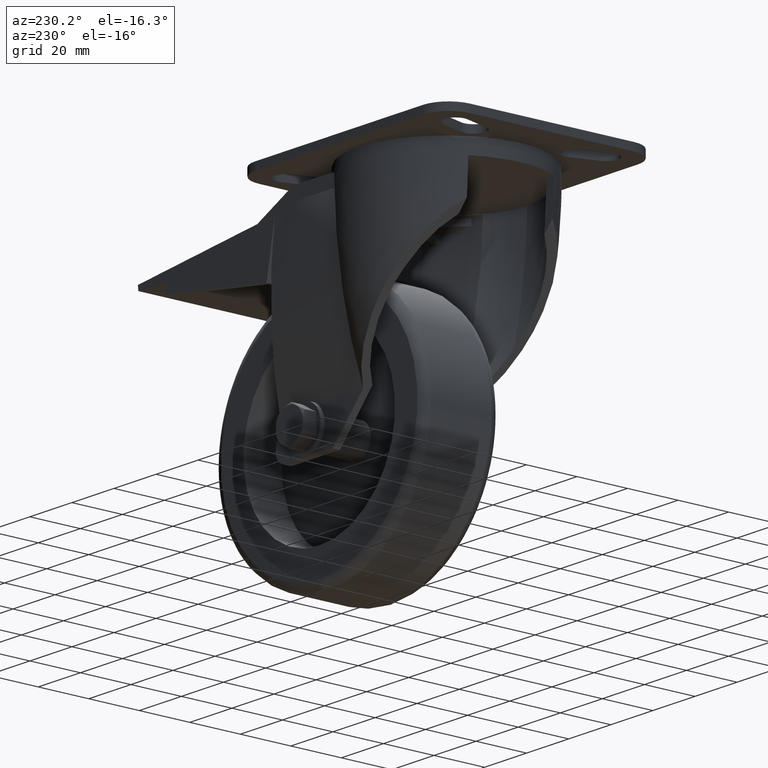
[diagram: clean part render]
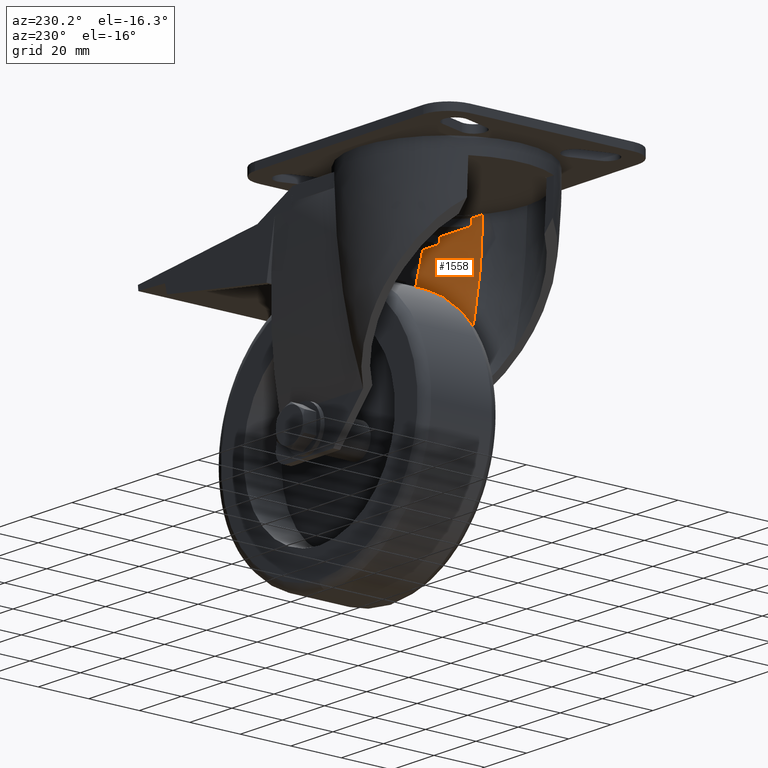
[diagram: same view with one face highlighted and labeled with its STEP entity id]
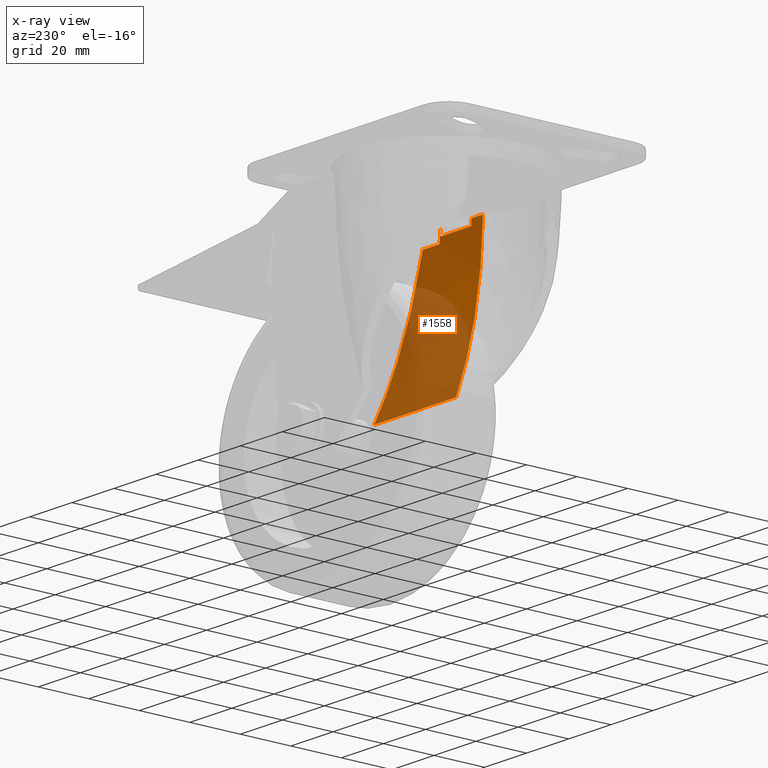
[diagram: x-ray of the same camera — body ghosted, the highlighted face saturated]
A machine part, auxiliary view. The second image highlights one B-rep face of the part: STEP entity #1558.
The next image is the same camera in x-ray: the body ghosted, the highlighted face saturated — about 63% of this face is hidden behind the body in this view.
In plain terms, the highlighted face is a freeform B-spline surface patch.
Its self-contained STEP definition (entity closure, byte-faithful):
#1007=CARTESIAN_POINT('',(-34.001522241716145,-27.712269780300414,-9.075096515549770));
#1008=VERTEX_POINT('',#1007);
#1016=CARTESIAN_POINT('',(-34.001522241716089,-17.070057319302080,-69.016779864440082));
#1017=VERTEX_POINT('',#1016);
#1018=CARTESIAN_POINT('',(-34.001522241716089,-27.712269780300414,-9.075096515550055));
#1019=CARTESIAN_POINT('',(-34.001522241716145,-27.675552086705988,-11.487526515328224));
#1020=CARTESIAN_POINT('',(-34.001522246608317,-27.465595016467784,-17.841934993525168));
#1021=CARTESIAN_POINT('',(-34.001522215523039,-26.707649965393397,-27.276906370432524));
#1022=CARTESIAN_POINT('',(-34.001522315381806,-25.353580577046969,-37.343742798966161));
#1023=CARTESIAN_POINT('',(-34.001522022057031,-23.937088444888573,-45.013148197683222));
#1024=CARTESIAN_POINT('',(-34.001522786426165,-22.202043046810800,-52.698920388377474));
#1025=CARTESIAN_POINT('',(-34.001518682892993,-20.534332425598635,-58.872937980063341));
#1026=CARTESIAN_POINT('',(-34.001528155802589,-18.617863284517298,-64.809903734754016));
#1027=CARTESIAN_POINT('',(-34.001510792512988,-17.580922836717903,-67.679988680307645));
#1028=CARTESIAN_POINT('',(-34.001510792512988,-17.070044804297552,-69.016784533915882));
#1029=B_SPLINE_CURVE_WITH_KNOTS('',3,(#1018,#1019,#1020,#1021,#1022,#1023,#1024,#1025,#1026,#1027,#1028),.UNSPECIFIED.,.F.,.U.,(4,1,1,1,1,1,1,1,4),(0.0,7.238509718226894,19.069937262666731,28.384042776745996,37.702191637715757,42.459731055246415,52.019537423077047,56.879369749595590,61.172850572095875),.UNSPECIFIED.);
#1030=EDGE_CURVE('',#1008,#1017,#1029,.T.);
#1356=CARTESIAN_POINT('',(-28.624079607602937,-27.712269780300471,-9.075096515550055));
#1357=VERTEX_POINT('',#1356);
#1365=CARTESIAN_POINT('',(-34.001522241716089,-27.712269780300414,-9.075096515550055));
#1366=DIRECTION('',(1.0,0.0,0.0));
#1367=VECTOR('',#1366,5.377442634113201);
#1368=LINE('',#1365,#1367);
#1369=EDGE_CURVE('',#1008,#1357,#1368,.T.);
#1465=CARTESIAN_POINT('',(-34.001522241716145,-17.070057319302194,-69.016784533913324));
#1466=CARTESIAN_POINT('',(-34.001522241716089,-17.580922836718017,-67.679988680307645));
#1467=CARTESIAN_POINT('',(-34.001522241716145,-18.617863284517355,-64.809903734754016));
#1468=CARTESIAN_POINT('',(-34.001522241716089,-20.534332425598578,-58.872937980063341));
#1469=CARTESIAN_POINT('',(-34.001522241716145,-22.202043046810800,-52.698920388377474));
#1470=CARTESIAN_POINT('',(-34.001522241716145,-23.937088444888573,-45.013148197683222));
#1471=CARTESIAN_POINT('',(-34.001522241716089,-25.353580577046856,-37.343742798966161));
#1472=CARTESIAN_POINT('',(-34.001522241716145,-26.707649965393397,-27.276906370432524));
#1473=CARTESIAN_POINT('',(-34.001522241716145,-27.465595016467727,-17.841934993525168));
#1474=CARTESIAN_POINT('',(-34.001522241716145,-27.675552086705988,-11.487526515328224));
#1475=CARTESIAN_POINT('',(-34.001522241716089,-27.712269780300414,-9.075096515550055));
#1476=CARTESIAN_POINT('',(4.874462601228032,-17.070057319302180,-69.016784533913324));
#1477=CARTESIAN_POINT('',(4.874462601228089,-17.580922836718003,-67.679988680307645));
#1478=CARTESIAN_POINT('',(4.874462601228032,-18.617863284517341,-64.809903734754016));
#1479=CARTESIAN_POINT('',(4.874462601228089,-20.534332425598564,-58.872937980063341));
#1480=CARTESIAN_POINT('',(4.874462601228032,-22.202043046810786,-52.698920388377474));
#1481=CARTESIAN_POINT('',(4.874462601228032,-23.937088444888559,-45.013148197683222));
#1482=CARTESIAN_POINT('',(4.874462601228089,-25.353580577046841,-37.343742798966161));
#1483=CARTESIAN_POINT('',(4.874462601228032,-26.707649965393383,-27.276906370432524));
#1484=CARTESIAN_POINT('',(4.874462601228032,-27.465595016467713,-17.841934993525168));
#1485=CARTESIAN_POINT('',(4.874462601228032,-27.675552086705974,-11.487526515328224));
#1486=CARTESIAN_POINT('',(4.874462601228089,-27.712269780300399,-9.075096515550055));
#1487=B_SPLINE_SURFACE_WITH_KNOTS('',3,1,((#1465,#1476),(#1466,#1477),(#1467,#1478),(#1468,#1479),(#1469,#1480),(#1470,#1481),(#1471,#1482),(#1472,#1483),(#1473,#1484),(#1474,#1485),(#1475,#1486)),.UNSPECIFIED.,.F.,.F.,.U.,(4,1,1,1,1,1,1,1,4),(2,2),(0.0,4.293480822500285,9.153313149018828,18.713119516849460,23.470658934380118,32.788807795349882,42.102913309429141,53.934340853868981,61.172850572095875),(0.0,1.0),.UNSPECIFIED.);
#1488=ORIENTED_EDGE('',*,*,#1030,.F.);
#1489=ORIENTED_EDGE('',*,*,#1369,.T.);
#1490=CARTESIAN_POINT('',(-28.554967638052062,-27.658822390446925,-11.575096515550111));
#1491=VERTEX_POINT('',#1490);
#1492=CARTESIAN_POINT('',(-28.554967638196501,-27.658822390260706,-11.575096515550111));
#1493=CARTESIAN_POINT('',(-28.564559494370656,-27.666259354248393,-11.305073768031999));
#1494=CARTESIAN_POINT('',(-28.592039133483468,-27.687540790847844,-10.471938536440344));
#1495=CARTESIAN_POINT('',(-28.612963056748754,-27.703695004290420,-9.638477405330033));
#1496=CARTESIAN_POINT('',(-28.624079607602937,-27.712269780300471,-9.075096515550168));
#1497=B_SPLINE_CURVE_WITH_KNOTS('',3,(#1492,#1493,#1494,#1495,#1496),.UNSPECIFIED.,.F.,.U.,(4,1,4),(0.0,0.810887473715754,2.501566917500966),.UNSPECIFIED.);
#1498=EDGE_CURVE('',#1491,#1357,#1497,.T.);
#1499=ORIENTED_EDGE('',*,*,#1498,.F.);
#1500=CARTESIAN_POINT('',(-14.000009128813417,-27.658822390446925,-11.575096515550111));
#1501=VERTEX_POINT('',#1500);
#1502=CARTESIAN_POINT('',(-28.554967638052034,-27.658822390446979,-11.575096515550111));
#1503=DIRECTION('',(1.0,0.0,0.0));
#1504=VECTOR('',#1503,14.554958509238674);
#1505=LINE('',#1502,#1504);
#1506=EDGE_CURVE('',#1491,#1501,#1505,.T.);
#1507=ORIENTED_EDGE('',*,*,#1506,.T.);
#1508=CARTESIAN_POINT('',(-14.000009128813417,-27.712269780300357,-9.075096515550055));
#1509=VERTEX_POINT('',#1508);
#1510=CARTESIAN_POINT('',(-14.000009128813417,-27.712269780300357,-9.075096515550055));
#1511=CARTESIAN_POINT('',(-14.000009128813474,-27.699585093033431,-9.908507253128274));
#1512=CARTESIAN_POINT('',(-14.000009128813360,-27.681771240579689,-10.741865162621306));
#1513=CARTESIAN_POINT('',(-14.000009128813417,-27.658822390446925,-11.575096515550111));
#1514=B_SPLINE_CURVE_WITH_KNOTS('',3,(#1510,#1511,#1512,#1513),.UNSPECIFIED.,.F.,.U.,(4,4),(0.0,2.500653583228871),.UNSPECIFIED.);
#1515=EDGE_CURVE('',#1509,#1501,#1514,.T.);
#1516=ORIENTED_EDGE('',*,*,#1515,.F.);
#1517=CARTESIAN_POINT('',(-13.467745687016873,-27.581446510978889,-13.899939804415279));
#1518=VERTEX_POINT('',#1517);
#1519=CARTESIAN_POINT('',(-14.000009128813417,-27.712269780300357,-9.075096515550168));
#1520=CARTESIAN_POINT('',(-13.877231454090861,-27.695330433830190,-10.188047346642062));
#1521=CARTESIAN_POINT('',(-13.699782396351395,-27.657624627107634,-11.796581444833517));
#1522=CARTESIAN_POINT('',(-13.522401071842410,-27.600782139941099,-13.404501557170530));
#1523=CARTESIAN_POINT('',(-13.467745687016873,-27.581446510978889,-13.899939804415279));
#1524=B_SPLINE_CURVE_WITH_KNOTS('',3,(#1519,#1520,#1521,#1522,#1523),.UNSPECIFIED.,.F.,.U.,(4,1,4),(0.0,3.359528523844394,4.855987936279900),.UNSPECIFIED.);
#1525=EDGE_CURVE('',#1509,#1518,#1524,.T.);
#1526=ORIENTED_EDGE('',*,*,#1525,.T.);
#1527=CARTESIAN_POINT('',(-5.557483688947116,-27.581446510978832,-13.899939804415279));
#1528=VERTEX_POINT('',#1527);
#1529=CARTESIAN_POINT('',(-13.467745687016759,-27.581446510978882,-13.899939804415279));
#1530=DIRECTION('',(1.0,0.0,0.0));
#1531=VECTOR('',#1530,7.910261998069672);
#1532=LINE('',#1529,#1531);
#1533=EDGE_CURVE('',#1518,#1528,#1532,.T.);
#1534=ORIENTED_EDGE('',*,*,#1533,.T.);
#1535=CARTESIAN_POINT('',(4.873462601180563,-17.070057319302080,-69.016784533913324));
#1536=VERTEX_POINT('',#1535);
#1537=CARTESIAN_POINT('',(-5.557483688947116,-27.581446510978832,-13.899939804415279));
#1538=CARTESIAN_POINT('',(-5.133804296385051,-27.494075622467516,-16.138650525899489));
#1539=CARTESIAN_POINT('',(-4.019163910715747,-27.166447328172193,-22.028380887592842));
#1540=CARTESIAN_POINT('',(-2.005217439596265,-26.102359059789379,-32.670020855317318));
#1541=CARTESIAN_POINT('',(-0.059739954223687,-24.397017640318680,-42.949872510531634));
#1542=CARTESIAN_POINT('',(1.600704011784387,-22.429816745494705,-51.723614576781927));
#1543=CARTESIAN_POINT('',(2.739316716416511,-20.845241322687471,-57.740014038798961));
#1544=CARTESIAN_POINT('',(3.848028370377733,-19.040971458757170,-63.598417138716343));
#1545=CARTESIAN_POINT('',(4.542940171136252,-17.737483249079517,-67.270312742220483));
#1546=CARTESIAN_POINT('',(4.873462601180563,-17.070057319302080,-69.016784533913267));
#1547=B_SPLINE_CURVE_WITH_KNOTS('',3,(#1537,#1538,#1539,#1540,#1541,#1542,#1543,#1544,#1545,#1546),.UNSPECIFIED.,.F.,.U.,(4,1,1,1,1,1,1,4),(0.0,6.840672822751325,18.006686977940841,32.636661141256987,38.619207649579664,45.433666731473586,51.607435131005040,57.303829068746722),.UNSPECIFIED.);
#1548=EDGE_CURVE('',#1528,#1536,#1547,.T.);
#1549=ORIENTED_EDGE('',*,*,#1548,.T.);
#1550=CARTESIAN_POINT('',(-34.001522241716145,-17.070057319302194,-69.016784533913324));
#1551=DIRECTION('',(1.0,0.0,0.0));
#1552=VECTOR('',#1551,38.874984842896687);
#1553=LINE('',#1550,#1552);
#1554=EDGE_CURVE('',#1017,#1536,#1553,.T.);
#1555=ORIENTED_EDGE('',*,*,#1554,.F.);
#1556=EDGE_LOOP('',(#1488,#1489,#1499,#1507,#1516,#1526,#1534,#1549,#1555));
#1557=FACE_OUTER_BOUND('',#1556,.T.);
#1558=ADVANCED_FACE('',(#1557),#1487,.T.);